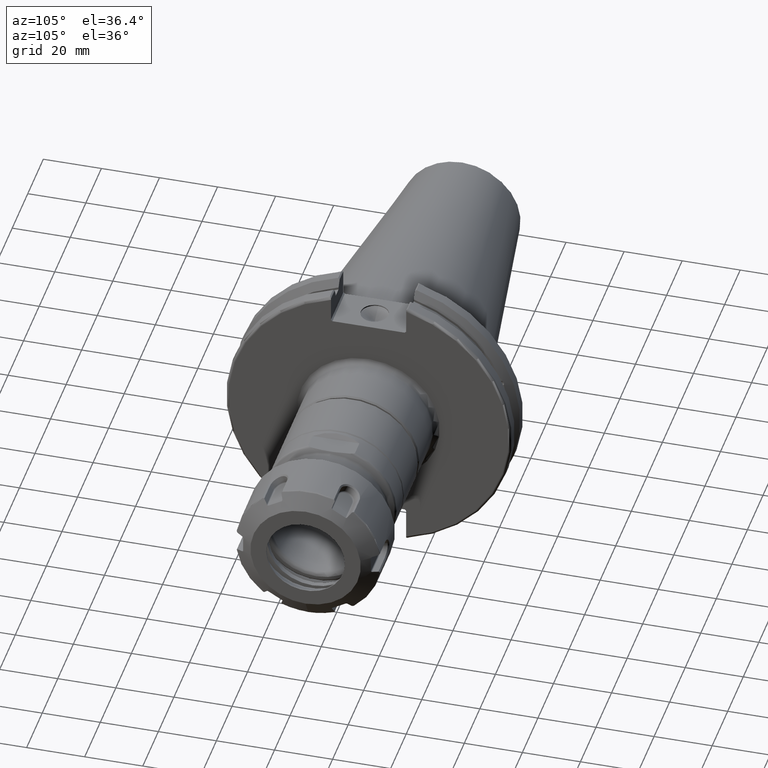
[diagram: clean part render]
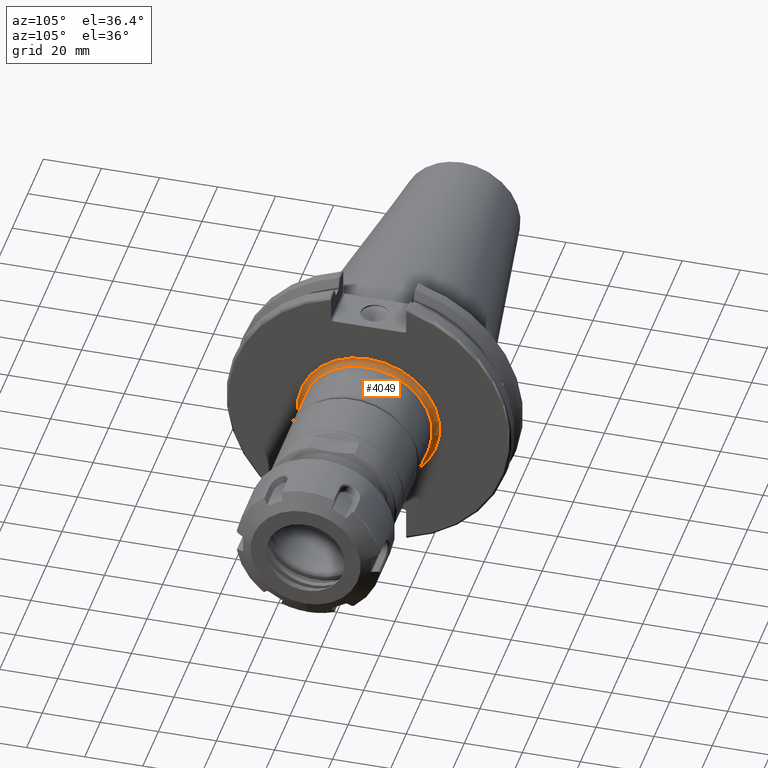
[diagram: same view with one face highlighted and labeled with its STEP entity id]
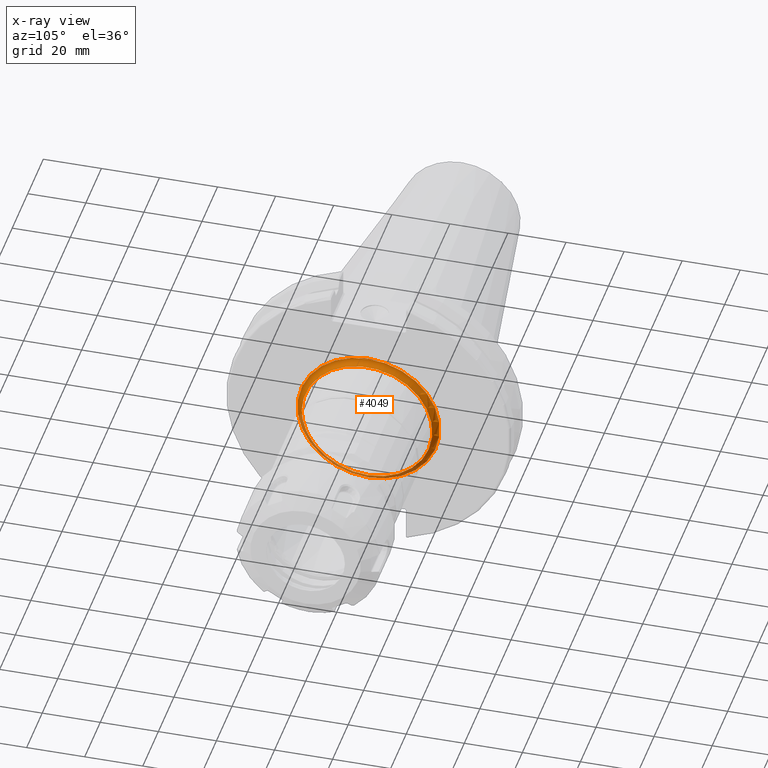
[diagram: x-ray of the same camera — body ghosted, the highlighted face saturated]
A machine part, auxiliary view. The second image highlights one B-rep face of the part: STEP entity #4049.
The next image is the same camera in x-ray: the body ghosted, the highlighted face saturated — about 18% of this face is hidden behind the body in this view.
In plain terms, the highlighted toroidal blend (fillet) surface has major radius 24.5 mm and minor (blend) radius 2 mm.
Its self-contained STEP definition (entity closure, byte-faithful):
#186=TOROIDAL_SURFACE('',#4456,24.5,2.);
#459=FACE_OUTER_BOUND('',#723,.T.);
#723=EDGE_LOOP('',(#2832,#2833,#2834,#2835,#2836));
#1512=CIRCLE('',#4452,22.5);
#1513=CIRCLE('',#4453,22.5);
#1515=CIRCLE('',#4457,2.);
#1516=CIRCLE('',#4458,24.5);
#1754=VERTEX_POINT('',#6246);
#1755=VERTEX_POINT('',#6248);
#1757=VERTEX_POINT('',#6255);
#2172=EDGE_CURVE('',#1755,#1754,#1512,.T.);
#2173=EDGE_CURVE('',#1754,#1755,#1513,.T.);
#2175=EDGE_CURVE('',#1755,#1757,#1515,.T.);
#2176=EDGE_CURVE('',#1757,#1757,#1516,.T.);
#2832=ORIENTED_EDGE('',*,*,#2173,.T.);
#2833=ORIENTED_EDGE('',*,*,#2175,.T.);
#2834=ORIENTED_EDGE('',*,*,#2176,.T.);
#2835=ORIENTED_EDGE('',*,*,#2175,.F.);
#2836=ORIENTED_EDGE('',*,*,#2172,.T.);
#4049=ADVANCED_FACE('',(#459),#186,.F.);
#4452=AXIS2_PLACEMENT_3D('',#6249,#5022,#5023);
#4453=AXIS2_PLACEMENT_3D('',#6250,#5024,#5025);
#4456=AXIS2_PLACEMENT_3D('',#6254,#5030,#5031);
#4457=AXIS2_PLACEMENT_3D('',#6256,#5032,#5033);
#4458=AXIS2_PLACEMENT_3D('',#6257,#5034,#5035);
#5022=DIRECTION('center_axis',(-1.,0.,0.));
#5023=DIRECTION('ref_axis',(0.,-1.,-1.22464679914735E-16));
#5024=DIRECTION('center_axis',(-1.,0.,0.));
#5025=DIRECTION('ref_axis',(0.,-1.,-1.22464679914735E-16));
#5030=DIRECTION('center_axis',(-1.,0.,0.));
#5031=DIRECTION('ref_axis',(0.,0.,1.));
#5032=DIRECTION('center_axis',(0.,-1.,1.22464679914735E-16));
#5033=DIRECTION('ref_axis',(0.,-1.22464679914735E-16,-1.));
#5034=DIRECTION('center_axis',(1.,0.,0.));
#5035=DIRECTION('ref_axis',(0.,-1.,-1.22464679914735E-16));
#6246=CARTESIAN_POINT('',(21.05,-22.5,-2.75545529808154E-15));
#6248=CARTESIAN_POINT('',(21.05,-2.75545529808154E-15,-22.5));
#6249=CARTESIAN_POINT('Origin',(21.05,0.,0.));
#6250=CARTESIAN_POINT('Origin',(21.05,0.,0.));
#6254=CARTESIAN_POINT('Origin',(21.05,0.,0.));
#6255=CARTESIAN_POINT('',(19.05,-3.00038465791102E-15,-24.5));
#6256=CARTESIAN_POINT('Origin',(21.05,-3.00038465791102E-15,-24.5));
#6257=CARTESIAN_POINT('Origin',(19.05,0.,0.));